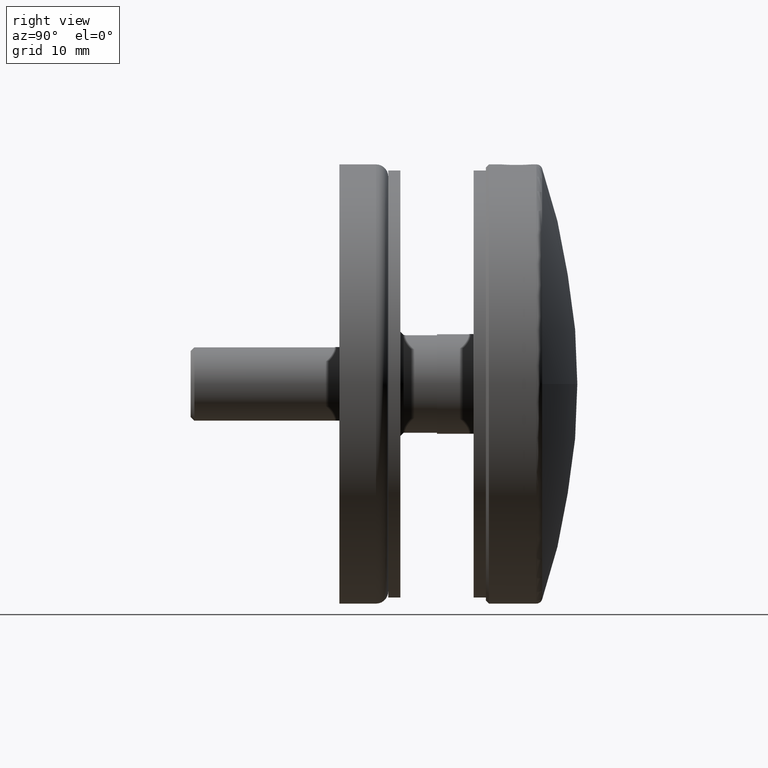
[diagram: clean part render]
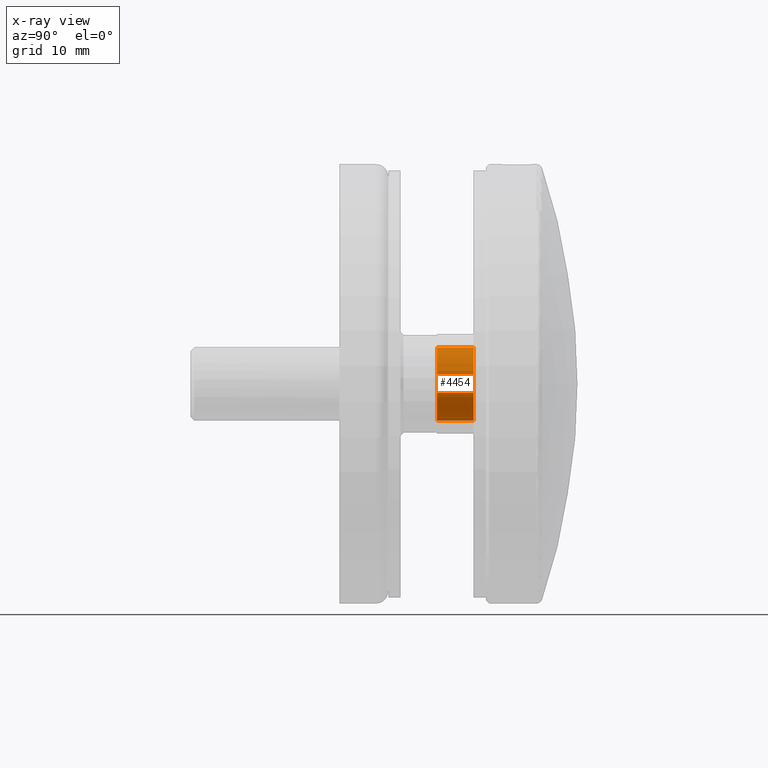
[diagram: x-ray — body ghosted, one internal face saturated and labeled with its STEP entity id]
A machine part, right view, then the same camera in x-ray: the body is ghosted and one INTERNAL B-rep face — a face not visible from any outside direction — is saturated and labeled: STEP entity #4454.
In plain terms, the highlighted cylindrical surface (partial cylindrical patch) has radius 6 mm, axis along (-0, -1, -0).
Its self-contained STEP definition (entity closure, byte-faithful):
#181 = ORIENTED_EDGE ( 'NONE', *, *, #2366, .T. ) ;
#948 = ORIENTED_EDGE ( 'NONE', *, *, #5401, .T. ) ;
#1341 = EDGE_LOOP ( 'NONE', ( #1565, #181, #948, #2832 ) ) ;
#1565 = ORIENTED_EDGE ( 'NONE', *, *, #8532, .F. ) ;
#2253 = DIRECTION ( 'NONE',  ( 0.000000000000000000, 0.000000000000000000, 1.000000000000000000 ) ) ;
#2366 = EDGE_CURVE ( 'NONE', #8160, #14689, #5467, .T. ) ;
#2832 = ORIENTED_EDGE ( 'NONE', *, *, #10706, .F. ) ;
#3732 = CARTESIAN_POINT ( 'NONE',  ( 0.000000000000000000, 6.000000000000000000, 0.000000000000000000 ) ) ;
#3965 = VERTEX_POINT ( 'NONE', #10392 ) ;
#4093 = CARTESIAN_POINT ( 'NONE',  ( 0.000000000000000000, 6.000000000000000000, -6.000000000000000888 ) ) ;
#4439 = VECTOR ( 'NONE', #15270, 1000.000000000000000 ) ;
#4442 = AXIS2_PLACEMENT_3D ( 'NONE', #12356, #13440, #12547 ) ;
#4454 = ADVANCED_FACE ( 'NONE', ( #12901 ), #6176, .F. ) ;
#5401 = EDGE_CURVE ( 'NONE', #14689, #6640, #7109, .T. ) ;
#5467 = CIRCLE ( 'NONE', #6140, 6.000000000000000888 ) ;
#6140 = AXIS2_PLACEMENT_3D ( 'NONE', #3732, #10951, #10801 ) ;
#6176 = CYLINDRICAL_SURFACE ( 'NONE', #4442, 6.000000000000000888 ) ;
#6640 = VERTEX_POINT ( 'NONE', #10910 ) ;
#7109 = LINE ( 'NONE', #13034, #15504 ) ;
#7754 = CARTESIAN_POINT ( 'NONE',  ( 7.347880794884120722E-16, 6.000000000000000000, 6.000000000000000888 ) ) ;
#8160 = VERTEX_POINT ( 'NONE', #7754 ) ;
#8200 = CARTESIAN_POINT ( 'NONE',  ( 0.000000000000000000, 0.000000000000000000, 0.000000000000000000 ) ) ;
#8532 = EDGE_CURVE ( 'NONE', #8160, #3965, #8927, .T. ) ;
#8927 = LINE ( 'NONE', #14215, #4439 ) ;
#10392 = CARTESIAN_POINT ( 'NONE',  ( 7.347880794884120722E-16, 0.000000000000000000, 6.000000000000000888 ) ) ;
#10706 = EDGE_CURVE ( 'NONE', #3965, #6640, #13214, .T. ) ;
#10801 = DIRECTION ( 'NONE',  ( 0.000000000000000000, 0.000000000000000000, 1.000000000000000000 ) ) ;
#10910 = CARTESIAN_POINT ( 'NONE',  ( 0.000000000000000000, 0.000000000000000000, -6.000000000000000888 ) ) ;
#10951 = DIRECTION ( 'NONE',  ( 0.000000000000000000, 1.000000000000000000, 0.000000000000000000 ) ) ;
#11907 = DIRECTION ( 'NONE',  ( 0.000000000000000000, 1.000000000000000000, 0.000000000000000000 ) ) ;
#12356 = CARTESIAN_POINT ( 'NONE',  ( 0.000000000000000000, 6.000000000000000000, 0.000000000000000000 ) ) ;
#12547 = DIRECTION ( 'NONE',  ( 0.000000000000000000, 0.000000000000000000, -1.000000000000000000 ) ) ;
#12901 = FACE_OUTER_BOUND ( 'NONE', #1341, .T. ) ;
#13034 = CARTESIAN_POINT ( 'NONE',  ( 0.000000000000000000, 6.000000000000000000, -6.000000000000000888 ) ) ;
#13086 = AXIS2_PLACEMENT_3D ( 'NONE', #8200, #11907, #2253 ) ;
#13214 = CIRCLE ( 'NONE', #13086, 6.000000000000000888 ) ;
#13440 = DIRECTION ( 'NONE',  ( -0.000000000000000000, -1.000000000000000000, -0.000000000000000000 ) ) ;
#14215 = CARTESIAN_POINT ( 'NONE',  ( 7.347880794884120722E-16, 6.000000000000000000, 6.000000000000000888 ) ) ;
#14219 = DIRECTION ( 'NONE',  ( -0.000000000000000000, -1.000000000000000000, -0.000000000000000000 ) ) ;
#14689 = VERTEX_POINT ( 'NONE', #4093 ) ;
#15270 = DIRECTION ( 'NONE',  ( -0.000000000000000000, -1.000000000000000000, -0.000000000000000000 ) ) ;
#15504 = VECTOR ( 'NONE', #14219, 1000.000000000000000 ) ;